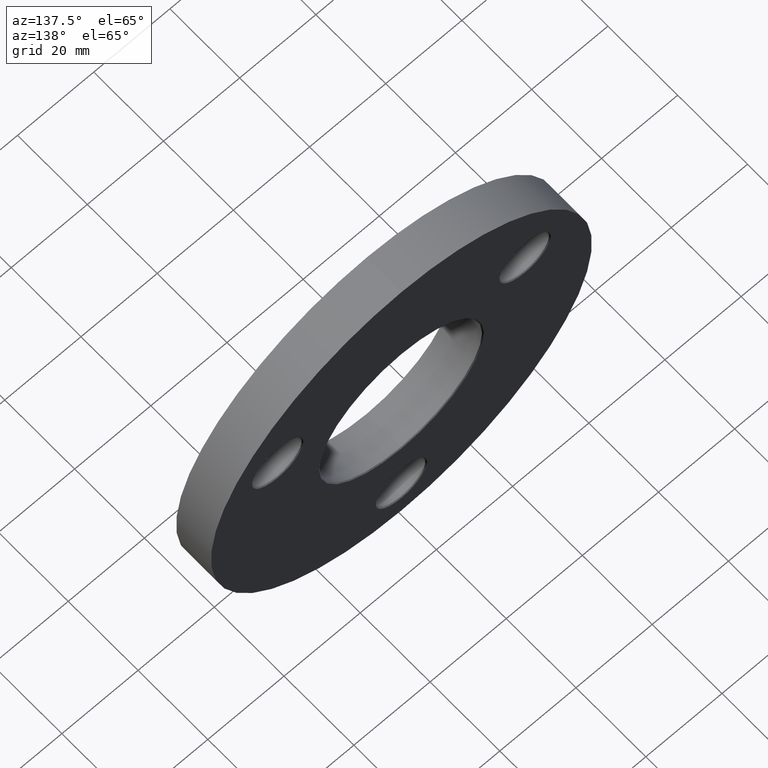
[diagram: clean part render]
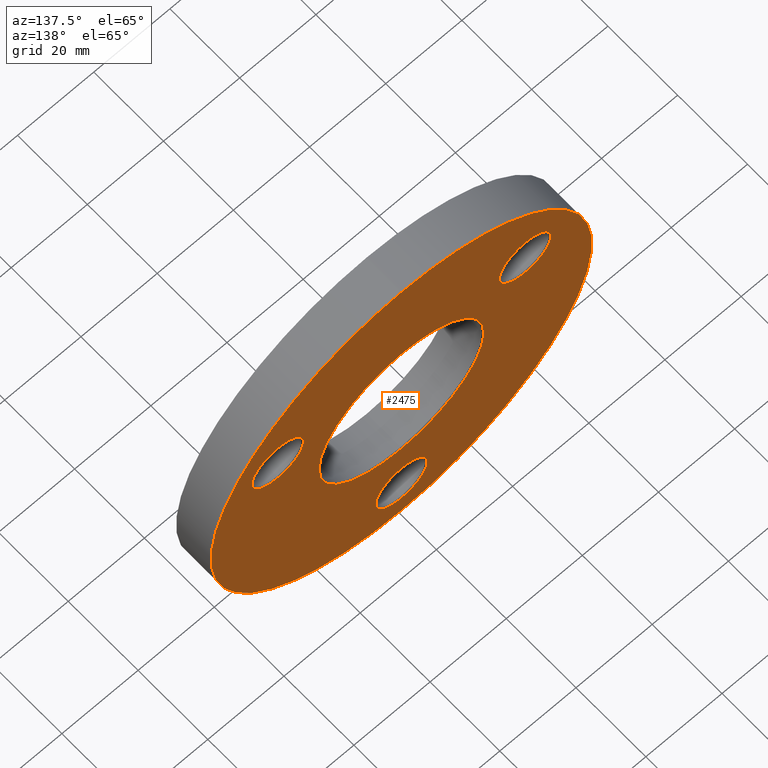
[diagram: same view with one face highlighted and labeled with its STEP entity id]
A machine part, auxiliary view. The second image highlights one B-rep face of the part: STEP entity #2475.
In plain terms, the highlighted planar face has unit normal (0, 1, 0).
Its self-contained STEP definition (entity closure, byte-faithful):
#131 = PLANE ( 'NONE',  #2683 ) ;
#382 = CARTESIAN_POINT ( 'NONE',  ( -32.47595264191643594, 10.00000000000000000, 18.75000000000001776 ) ) ;
#496 = CARTESIAN_POINT ( 'NONE',  ( 0.000000000000000000, 10.00000000000000000, 0.000000000000000000 ) ) ;
#636 = DIRECTION ( 'NONE',  ( -0.000000000000000000, -1.000000000000000000, -0.000000000000000000 ) ) ;
#825 = ORIENTED_EDGE ( 'NONE', *, *, #4905, .T. ) ;
#871 = CIRCLE ( 'NONE', #5019, 6.749999999999992006 ) ;
#902 = EDGE_CURVE ( 'NONE', #6637, #5326, #3620, .T. ) ;
#940 = DIRECTION ( 'NONE',  ( -0.000000000000000000, -1.000000000000000000, -0.000000000000000000 ) ) ;
#1034 = DIRECTION ( 'NONE',  ( 0.000000000000000000, 0.000000000000000000, 1.000000000000000000 ) ) ;
#1087 = VERTEX_POINT ( 'NONE', #11398 ) ;
#1155 = CARTESIAN_POINT ( 'NONE',  ( 0.000000000000000000, 10.00000000000000000, 0.000000000000000000 ) ) ;
#1456 = DIRECTION ( 'NONE',  ( -0.000000000000000000, -1.000000000000000000, -0.000000000000000000 ) ) ;
#1695 = ORIENTED_EDGE ( 'NONE', *, *, #902, .T. ) ;
#1705 = DIRECTION ( 'NONE',  ( 0.000000000000000000, 0.000000000000000000, 1.000000000000000000 ) ) ;
#1981 = ORIENTED_EDGE ( 'NONE', *, *, #10647, .T. ) ;
#2012 = EDGE_CURVE ( 'NONE', #13756, #7721, #871, .T. ) ;
#2036 = VERTEX_POINT ( 'NONE', #11890 ) ;
#2058 = EDGE_CURVE ( 'NONE', #2036, #2427, #3605, .T. ) ;
#2102 = DIRECTION ( 'NONE',  ( 0.000000000000000000, 0.000000000000000000, 1.000000000000000000 ) ) ;
#2285 = CARTESIAN_POINT ( 'NONE',  ( 0.000000000000000000, 10.00000000000000000, 0.000000000000000000 ) ) ;
#2427 = VERTEX_POINT ( 'NONE', #10195 ) ;
#2475 = ADVANCED_FACE ( 'NONE', ( #12457, #5376, #8824, #5551, #7894 ), #131, .T. ) ;
#2551 = EDGE_LOOP ( 'NONE', ( #1695, #13672 ) ) ;
#2683 = AXIS2_PLACEMENT_3D ( 'NONE', #2285, #10401, #13871 ) ;
#2768 = CIRCLE ( 'NONE', #2903, 21.64999999999998792 ) ;
#2775 = AXIS2_PLACEMENT_3D ( 'NONE', #9703, #1456, #7264 ) ;
#2872 = DIRECTION ( 'NONE',  ( 0.000000000000000000, 0.000000000000000000, 1.000000000000000000 ) ) ;
#2880 = DIRECTION ( 'NONE',  ( 0.000000000000000000, 0.000000000000000000, 1.000000000000000000 ) ) ;
#2901 = CARTESIAN_POINT ( 'NONE',  ( 6.123233995736766085E-15, 10.00000000000000000, 50.00000000000000000 ) ) ;
#2903 = AXIS2_PLACEMENT_3D ( 'NONE', #11365, #940, #9028 ) ;
#3342 = EDGE_CURVE ( 'NONE', #2427, #2036, #8449, .T. ) ;
#3544 = DIRECTION ( 'NONE',  ( 0.000000000000000000, 1.000000000000000000, 0.000000000000000000 ) ) ;
#3605 = CIRCLE ( 'NONE', #8313, 6.750000000000006217 ) ;
#3620 = CIRCLE ( 'NONE', #2775, 6.750000000000006217 ) ;
#3655 = VERTEX_POINT ( 'NONE', #2901 ) ;
#3887 = CARTESIAN_POINT ( 'NONE',  ( 8.266365894244624473E-16, 10.00000000000000000, -44.24999999999999289 ) ) ;
#4787 = CARTESIAN_POINT ( 'NONE',  ( -32.47595264191643594, 10.00000000000000000, 25.50000000000002132 ) ) ;
#4905 = EDGE_CURVE ( 'NONE', #3655, #7893, #11845, .T. ) ;
#5019 = AXIS2_PLACEMENT_3D ( 'NONE', #13277, #9752, #2880 ) ;
#5087 = DIRECTION ( 'NONE',  ( -0.000000000000000000, -1.000000000000000000, -0.000000000000000000 ) ) ;
#5304 = EDGE_CURVE ( 'NONE', #1087, #7362, #2768, .T. ) ;
#5326 = VERTEX_POINT ( 'NONE', #10196 ) ;
#5376 = FACE_BOUND ( 'NONE', #9356, .T. ) ;
#5378 = CARTESIAN_POINT ( 'NONE',  ( 0.000000000000000000, 10.00000000000000000, 21.64999999999998792 ) ) ;
#5410 = AXIS2_PLACEMENT_3D ( 'NONE', #13592, #13542, #2102 ) ;
#5545 = CIRCLE ( 'NONE', #5410, 6.749999999999992006 ) ;
#5551 = FACE_BOUND ( 'NONE', #11252, .T. ) ;
#5850 = DIRECTION ( 'NONE',  ( 0.000000000000000000, 1.000000000000000000, 0.000000000000000000 ) ) ;
#5862 = ORIENTED_EDGE ( 'NONE', *, *, #5304, .T. ) ;
#6161 = AXIS2_PLACEMENT_3D ( 'NONE', #382, #5087, #7494 ) ;
#6374 = EDGE_LOOP ( 'NONE', ( #7400, #5862 ) ) ;
#6428 = CARTESIAN_POINT ( 'NONE',  ( 0.000000000000000000, 10.00000000000000000, -30.75000000000000711 ) ) ;
#6637 = VERTEX_POINT ( 'NONE', #4787 ) ;
#7264 = DIRECTION ( 'NONE',  ( 0.000000000000000000, 0.000000000000000000, 1.000000000000000000 ) ) ;
#7314 = CARTESIAN_POINT ( 'NONE',  ( 32.47595264191645015, 10.00000000000000000, 18.74999999999999645 ) ) ;
#7362 = VERTEX_POINT ( 'NONE', #5378 ) ;
#7400 = ORIENTED_EDGE ( 'NONE', *, *, #11391, .T. ) ;
#7468 = EDGE_LOOP ( 'NONE', ( #10822, #825 ) ) ;
#7494 = DIRECTION ( 'NONE',  ( 0.000000000000000000, 0.000000000000000000, 1.000000000000000000 ) ) ;
#7721 = VERTEX_POINT ( 'NONE', #3887 ) ;
#7738 = AXIS2_PLACEMENT_3D ( 'NONE', #10477, #5850, #14004 ) ;
#7893 = VERTEX_POINT ( 'NONE', #14919 ) ;
#7894 = FACE_OUTER_BOUND ( 'NONE', #7468, .T. ) ;
#8313 = AXIS2_PLACEMENT_3D ( 'NONE', #7314, #9660, #1705 ) ;
#8375 = EDGE_CURVE ( 'NONE', #5326, #6637, #12145, .T. ) ;
#8449 = CIRCLE ( 'NONE', #13194, 6.750000000000006217 ) ;
#8824 = FACE_BOUND ( 'NONE', #2551, .T. ) ;
#9028 = DIRECTION ( 'NONE',  ( 0.000000000000000000, 0.000000000000000000, 1.000000000000000000 ) ) ;
#9180 = CIRCLE ( 'NONE', #14830, 50.00000000000000000 ) ;
#9327 = ORIENTED_EDGE ( 'NONE', *, *, #3342, .T. ) ;
#9356 = EDGE_LOOP ( 'NONE', ( #9327, #13321 ) ) ;
#9660 = DIRECTION ( 'NONE',  ( -0.000000000000000000, -1.000000000000000000, -0.000000000000000000 ) ) ;
#9703 = CARTESIAN_POINT ( 'NONE',  ( -32.47595264191643594, 10.00000000000000000, 18.75000000000001776 ) ) ;
#9728 = EDGE_CURVE ( 'NONE', #7893, #3655, #9180, .T. ) ;
#9752 = DIRECTION ( 'NONE',  ( -0.000000000000000000, -1.000000000000000000, -0.000000000000000000 ) ) ;
#10195 = CARTESIAN_POINT ( 'NONE',  ( 32.47595264191645015, 10.00000000000000000, 25.50000000000000355 ) ) ;
#10196 = CARTESIAN_POINT ( 'NONE',  ( -32.47595264191643594, 10.00000000000000000, 12.00000000000000888 ) ) ;
#10214 = CARTESIAN_POINT ( 'NONE',  ( 32.47595264191645015, 10.00000000000000000, 18.74999999999999645 ) ) ;
#10401 = DIRECTION ( 'NONE',  ( 0.000000000000000000, 1.000000000000000000, 0.000000000000000000 ) ) ;
#10477 = CARTESIAN_POINT ( 'NONE',  ( 0.000000000000000000, 10.00000000000000000, 0.000000000000000000 ) ) ;
#10647 = EDGE_CURVE ( 'NONE', #7721, #13756, #5545, .T. ) ;
#10822 = ORIENTED_EDGE ( 'NONE', *, *, #9728, .T. ) ;
#11252 = EDGE_LOOP ( 'NONE', ( #13518, #1981 ) ) ;
#11365 = CARTESIAN_POINT ( 'NONE',  ( 0.000000000000000000, 10.00000000000000000, 0.000000000000000000 ) ) ;
#11391 = EDGE_CURVE ( 'NONE', #7362, #1087, #14821, .T. ) ;
#11398 = CARTESIAN_POINT ( 'NONE',  ( 2.651360320154018482E-15, 10.00000000000000000, -21.64999999999998792 ) ) ;
#11636 = DIRECTION ( 'NONE',  ( 0.000000000000000000, 0.000000000000000000, 1.000000000000000000 ) ) ;
#11845 = CIRCLE ( 'NONE', #7738, 50.00000000000000000 ) ;
#11890 = CARTESIAN_POINT ( 'NONE',  ( 32.47595264191645015, 10.00000000000000000, 11.99999999999998757 ) ) ;
#12145 = CIRCLE ( 'NONE', #6161, 6.750000000000006217 ) ;
#12457 = FACE_BOUND ( 'NONE', #6374, .T. ) ;
#13194 = AXIS2_PLACEMENT_3D ( 'NONE', #10214, #13767, #1034 ) ;
#13277 = CARTESIAN_POINT ( 'NONE',  ( 0.000000000000000000, 10.00000000000000000, -37.50000000000000000 ) ) ;
#13321 = ORIENTED_EDGE ( 'NONE', *, *, #2058, .T. ) ;
#13518 = ORIENTED_EDGE ( 'NONE', *, *, #2012, .T. ) ;
#13542 = DIRECTION ( 'NONE',  ( -0.000000000000000000, -1.000000000000000000, -0.000000000000000000 ) ) ;
#13592 = CARTESIAN_POINT ( 'NONE',  ( 0.000000000000000000, 10.00000000000000000, -37.50000000000000000 ) ) ;
#13672 = ORIENTED_EDGE ( 'NONE', *, *, #8375, .T. ) ;
#13756 = VERTEX_POINT ( 'NONE', #6428 ) ;
#13767 = DIRECTION ( 'NONE',  ( -0.000000000000000000, -1.000000000000000000, -0.000000000000000000 ) ) ;
#13871 = DIRECTION ( 'NONE',  ( 0.000000000000000000, -0.000000000000000000, 1.000000000000000000 ) ) ;
#14004 = DIRECTION ( 'NONE',  ( 0.000000000000000000, 0.000000000000000000, 1.000000000000000000 ) ) ;
#14101 = AXIS2_PLACEMENT_3D ( 'NONE', #496, #636, #2872 ) ;
#14821 = CIRCLE ( 'NONE', #14101, 21.64999999999998792 ) ;
#14830 = AXIS2_PLACEMENT_3D ( 'NONE', #1155, #3544, #11636 ) ;
#14919 = CARTESIAN_POINT ( 'NONE',  ( 0.000000000000000000, 10.00000000000000000, -50.00000000000000000 ) ) ;